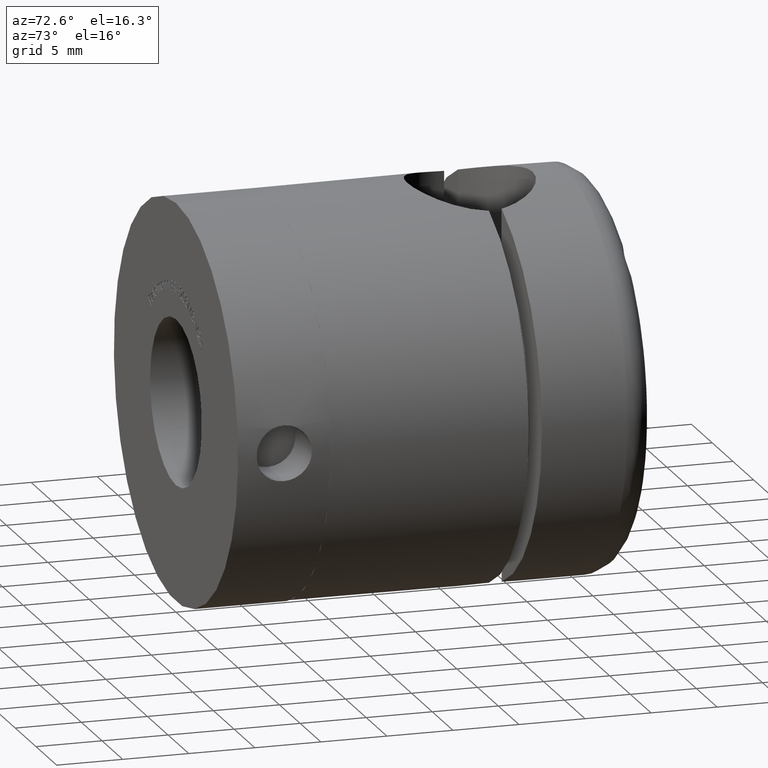
[diagram: clean part render]
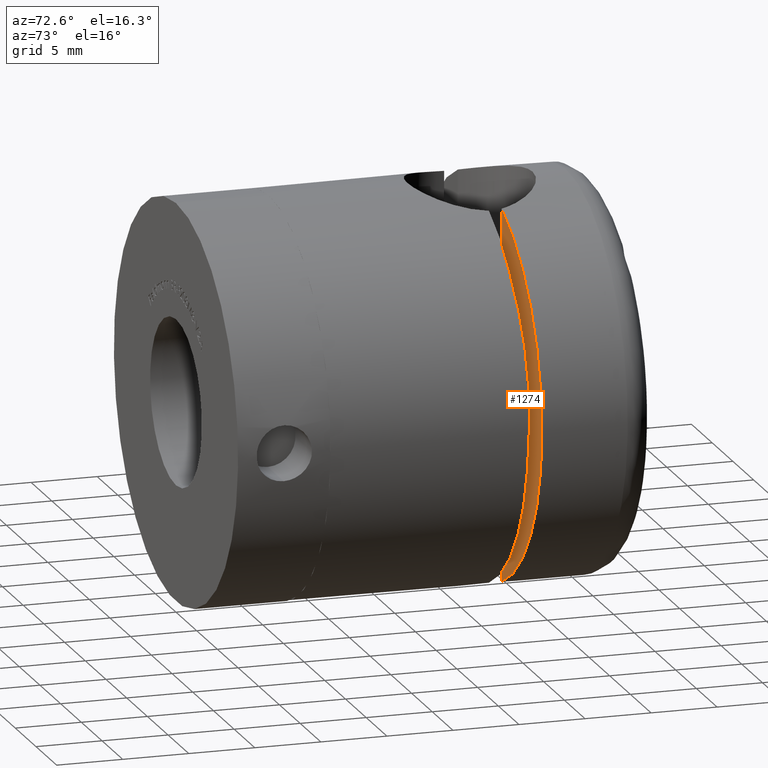
[diagram: same view with one face highlighted and labeled with its STEP entity id]
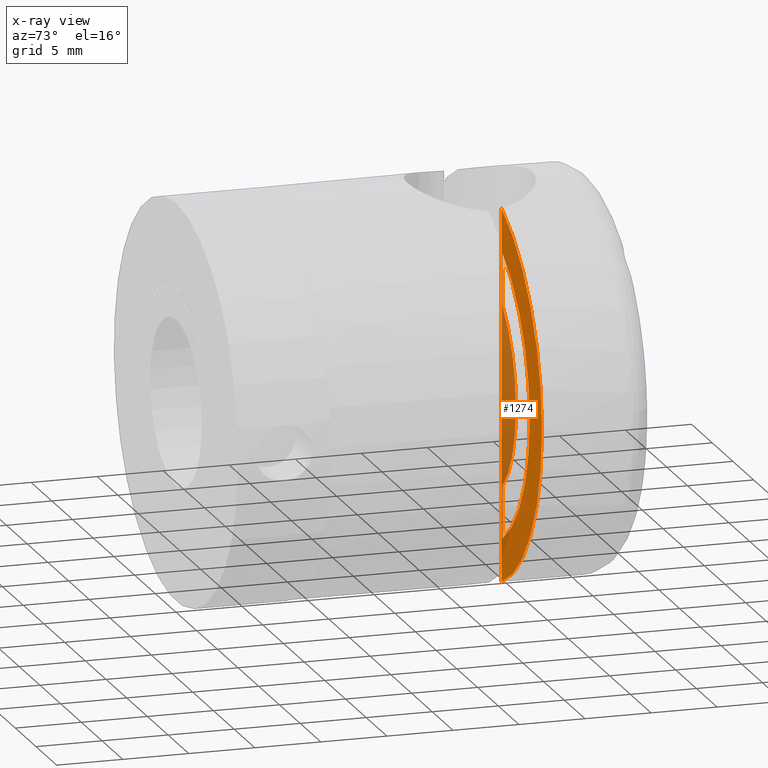
[diagram: x-ray of the same camera — body ghosted, the highlighted face saturated]
A machine part, auxiliary view. The second image highlights one B-rep face of the part: STEP entity #1274.
The next image is the same camera in x-ray: the body ghosted, the highlighted face saturated — about 29% of this face is hidden behind the body in this view.
In plain terms, the highlighted planar face has unit normal (0, -1, 0).
Its self-contained STEP definition (entity closure, byte-faithful):
#495 = VERTEX_POINT ( 'NONE', #6429 ) ;
#503 = CIRCLE ( 'NONE', #10241, 8.750000000000001800 ) ;
#682 = CARTESIAN_POINT ( 'NONE',  ( 5.499999999999996400, 10.00000000000000200, -30.00000000000000400 ) ) ;
#1274 = ADVANCED_FACE ( 'NONE', ( #8244, #13238 ), #5092, .T. ) ;
#1436 = EDGE_CURVE ( 'NONE', #2350, #4378, #15924, .T. ) ;
#1502 = EDGE_LOOP ( 'NONE', ( #9774, #12130 ) ) ;
#2350 = VERTEX_POINT ( 'NONE', #5229 ) ;
#2673 = VECTOR ( 'NONE', #12766, 1000.000000000000000 ) ;
#2689 = CARTESIAN_POINT ( 'NONE',  ( 0.0000000000000000000, 10.00000000000000000, 0.0000000000000000000 ) ) ;
#2825 = CARTESIAN_POINT ( 'NONE',  ( 5.500000000000000900, 10.00000000000000200, 6.805328794408102200 ) ) ;
#3060 = CARTESIAN_POINT ( 'NONE',  ( 0.0000000000000000000, 10.00000000000000000, 0.0000000000000000000 ) ) ;
#3092 = ORIENTED_EDGE ( 'NONE', *, *, #13353, .F. ) ;
#4378 = VERTEX_POINT ( 'NONE', #15043 ) ;
#5092 = PLANE ( 'NONE',  #7962 ) ;
#5229 = CARTESIAN_POINT ( 'NONE',  ( 5.500000000000000900, 10.00000000000000000, 10.72159036710506000 ) ) ;
#5405 = DIRECTION ( 'NONE',  ( -0.0000000000000000000, -1.000000000000000000, -0.0000000000000000000 ) ) ;
#5895 = EDGE_CURVE ( 'NONE', #495, #9332, #503, .T. ) ;
#6168 = EDGE_CURVE ( 'NONE', #14626, #8004, #17148, .T. ) ;
#6429 = CARTESIAN_POINT ( 'NONE',  ( 5.499999999999999100, 10.00000000000000200, -6.805328794408104900 ) ) ;
#7036 = AXIS2_PLACEMENT_3D ( 'NONE', #3060, #12391, #15066 ) ;
#7499 = CARTESIAN_POINT ( 'NONE',  ( 5.291502622129181400, 10.00000000000000000, -15.00000000000000000 ) ) ;
#7962 = AXIS2_PLACEMENT_3D ( 'NONE', #2689, #15718, #15890 ) ;
#8004 = VERTEX_POINT ( 'NONE', #9560 ) ;
#8244 = FACE_BOUND ( 'NONE', #11445, .T. ) ;
#8522 = DIRECTION ( 'NONE',  ( 0.0000000000000000000, 0.0000000000000000000, 1.000000000000000000 ) ) ;
#8610 = CARTESIAN_POINT ( 'NONE',  ( 5.499999999999996400, 10.00000000000000200, -30.00000000000000400 ) ) ;
#9332 = VERTEX_POINT ( 'NONE', #2825 ) ;
#9515 = LINE ( 'NONE', #682, #2673 ) ;
#9560 = CARTESIAN_POINT ( 'NONE',  ( 5.291502622129181400, 10.00000000000000000, -14.03566884761819900 ) ) ;
#9774 = ORIENTED_EDGE ( 'NONE', *, *, #14855, .T. ) ;
#9880 = VECTOR ( 'NONE', #15454, 1000.000000000000000 ) ;
#9910 = CARTESIAN_POINT ( 'NONE',  ( 0.0000000000000000000, 10.00000000000000000, 0.0000000000000000000 ) ) ;
#10241 = AXIS2_PLACEMENT_3D ( 'NONE', #12044, #5405, #14716 ) ;
#11445 = EDGE_LOOP ( 'NONE', ( #3092, #12876, #11620, #15050 ) ) ;
#11620 = ORIENTED_EDGE ( 'NONE', *, *, #16014, .F. ) ;
#11890 = CARTESIAN_POINT ( 'NONE',  ( 5.291502622129181400, 10.00000000000000000, 14.03566884761819900 ) ) ;
#12044 = CARTESIAN_POINT ( 'NONE',  ( 0.0000000000000000000, 10.00000000000000200, 0.0000000000000000000 ) ) ;
#12130 = ORIENTED_EDGE ( 'NONE', *, *, #6168, .F. ) ;
#12391 = DIRECTION ( 'NONE',  ( 0.0000000000000000000, 1.000000000000000000, 0.0000000000000000000 ) ) ;
#12766 = DIRECTION ( 'NONE',  ( 1.156482317317871500E-016, -0.0000000000000000000, 1.000000000000000000 ) ) ;
#12876 = ORIENTED_EDGE ( 'NONE', *, *, #5895, .F. ) ;
#13238 = FACE_OUTER_BOUND ( 'NONE', #1502, .T. ) ;
#13353 = EDGE_CURVE ( 'NONE', #9332, #2350, #9515, .T. ) ;
#13807 = CIRCLE ( 'NONE', #7036, 15.00000000000000000 ) ;
#13824 = AXIS2_PLACEMENT_3D ( 'NONE', #9910, #13840, #8522 ) ;
#13840 = DIRECTION ( 'NONE',  ( 0.0000000000000000000, 1.000000000000000000, 0.0000000000000000000 ) ) ;
#14167 = DIRECTION ( 'NONE',  ( 0.0000000000000000000, 0.0000000000000000000, -1.000000000000000000 ) ) ;
#14626 = VERTEX_POINT ( 'NONE', #11890 ) ;
#14716 = DIRECTION ( 'NONE',  ( 0.0000000000000000000, 0.0000000000000000000, 1.000000000000000000 ) ) ;
#14855 = EDGE_CURVE ( 'NONE', #14626, #8004, #13807, .T. ) ;
#15043 = CARTESIAN_POINT ( 'NONE',  ( 5.499999999999999100, 10.00000000000000000, -10.72159036710506000 ) ) ;
#15050 = ORIENTED_EDGE ( 'NONE', *, *, #1436, .F. ) ;
#15066 = DIRECTION ( 'NONE',  ( 0.0000000000000000000, 0.0000000000000000000, 1.000000000000000000 ) ) ;
#15454 = DIRECTION ( 'NONE',  ( 1.156482317317871500E-016, -0.0000000000000000000, 1.000000000000000000 ) ) ;
#15494 = LINE ( 'NONE', #8610, #9880 ) ;
#15718 = DIRECTION ( 'NONE',  ( 0.0000000000000000000, 1.000000000000000000, 0.0000000000000000000 ) ) ;
#15890 = DIRECTION ( 'NONE',  ( 0.0000000000000000000, -0.0000000000000000000, 1.000000000000000000 ) ) ;
#15924 = CIRCLE ( 'NONE', #13824, 12.05000000000000100 ) ;
#16014 = EDGE_CURVE ( 'NONE', #4378, #495, #15494, .T. ) ;
#16300 = VECTOR ( 'NONE', #14167, 1000.000000000000000 ) ;
#17148 = LINE ( 'NONE', #7499, #16300 ) ;